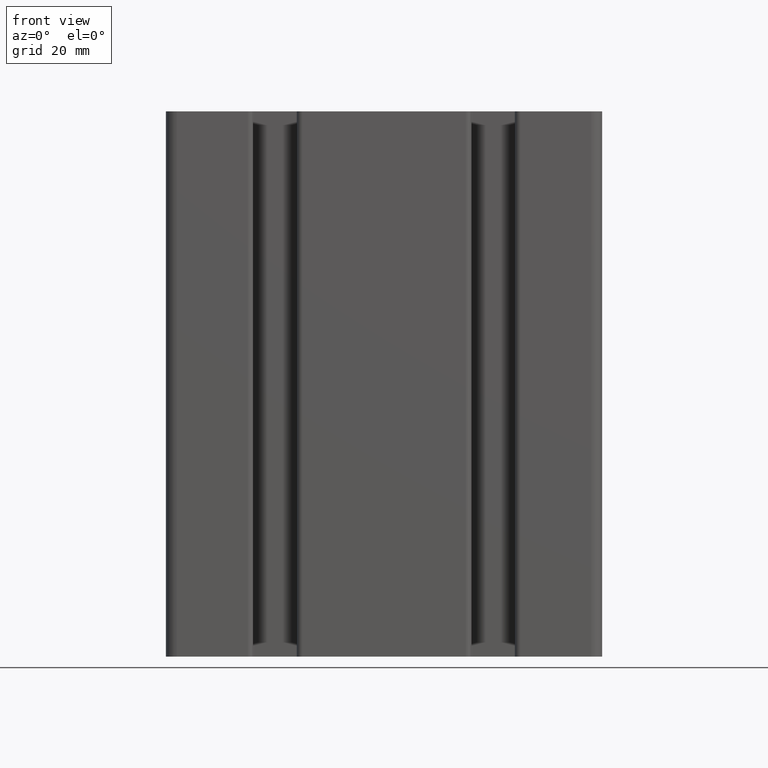
[diagram: clean part render]
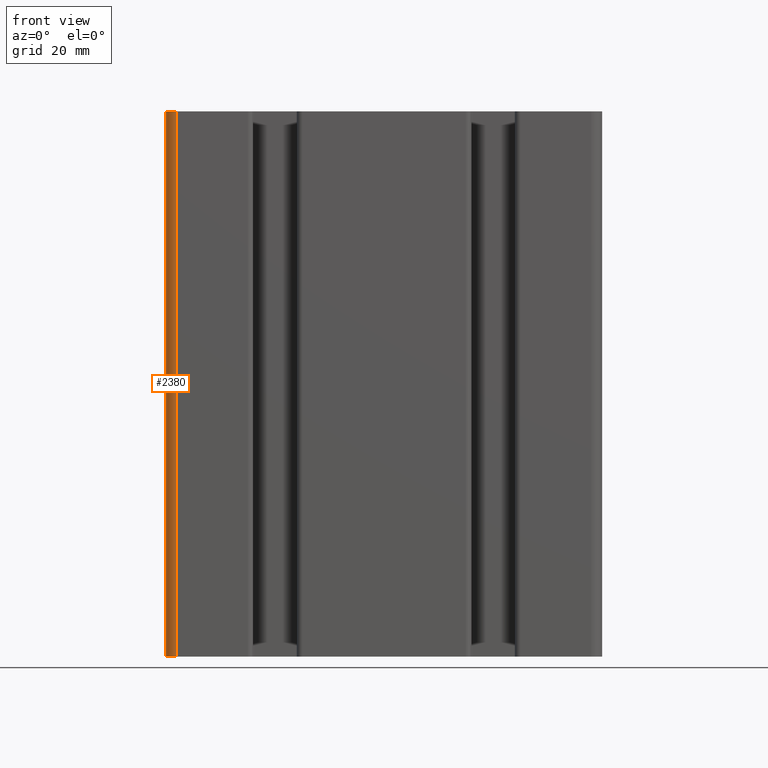
[diagram: same view with one face highlighted and labeled with its STEP entity id]
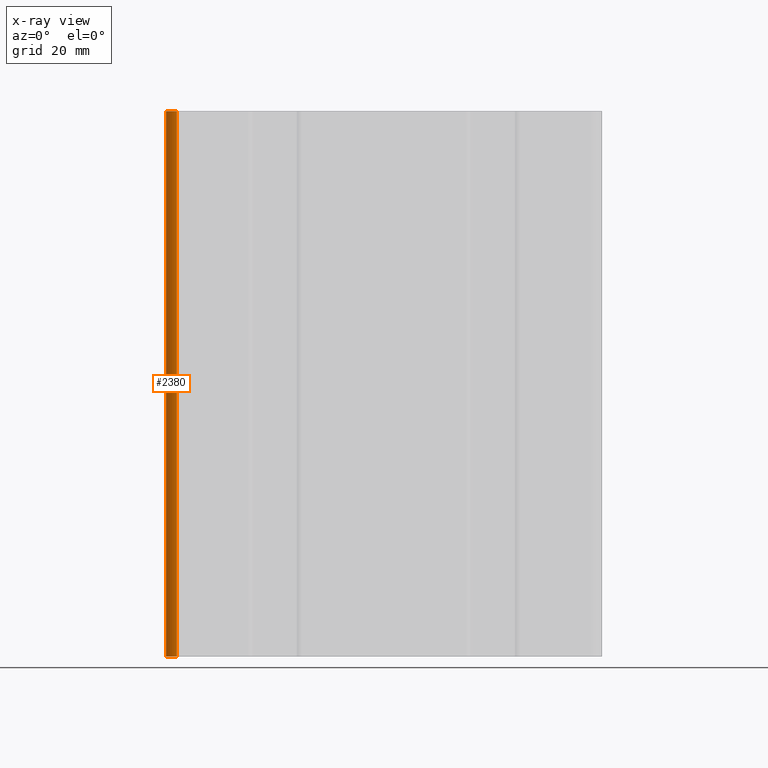
[diagram: x-ray of the same camera — body ghosted, the highlighted face saturated]
A machine part, front view. The second image highlights one B-rep face of the part: STEP entity #2380.
The next image is the same camera in x-ray: the body ghosted, the highlighted face saturated — about 0% of this face is hidden behind the body in this view.
In plain terms, the highlighted cylindrical surface (edge-blend (fillet) strip) has radius 2 mm, axis along (0, 0, 1).
Its self-contained STEP definition (entity closure, byte-faithful):
#223=LINE('',#3994,#455);
#234=LINE('',#4015,#466);
#455=VECTOR('',#3275,100.);
#466=VECTOR('',#3294,100.);
#660=FACE_OUTER_BOUND('',#785,.T.);
#785=EDGE_LOOP('',(#2065,#2066,#2067,#2068));
#909=CIRCLE('',#2616,2.00000000000001);
#911=CIRCLE('',#2619,2.00000000000001);
#1137=VERTEX_POINT('',#3991);
#1138=VERTEX_POINT('',#3993);
#1143=VERTEX_POINT('',#4012);
#1144=VERTEX_POINT('',#4014);
#1471=EDGE_CURVE('',#1137,#1138,#223,.T.);
#1482=EDGE_CURVE('',#1144,#1143,#234,.T.);
#1493=EDGE_CURVE('',#1143,#1138,#909,.T.);
#1496=EDGE_CURVE('',#1144,#1137,#911,.T.);
#2065=ORIENTED_EDGE('',*,*,#1493,.T.);
#2066=ORIENTED_EDGE('',*,*,#1471,.F.);
#2067=ORIENTED_EDGE('',*,*,#1496,.F.);
#2068=ORIENTED_EDGE('',*,*,#1482,.T.);
#2263=CYLINDRICAL_SURFACE('',#2618,2.00000000000001);
#2380=ADVANCED_FACE('',(#660),#2263,.T.);
#2616=AXIS2_PLACEMENT_3D('',#4033,#3313,#3314);
#2618=AXIS2_PLACEMENT_3D('',#4037,#3318,#3319);
#2619=AXIS2_PLACEMENT_3D('',#4038,#3320,#3321);
#3275=DIRECTION('',(0.,0.,1.));
#3294=DIRECTION('',(0.,0.,1.));
#3313=DIRECTION('center_axis',(0.,0.,-1.));
#3314=DIRECTION('ref_axis',(-1.,0.,0.));
#3318=DIRECTION('center_axis',(0.,0.,1.));
#3319=DIRECTION('ref_axis',(-1.,0.,0.));
#3320=DIRECTION('center_axis',(0.,0.,-1.));
#3321=DIRECTION('ref_axis',(-1.,0.,0.));
#3991=CARTESIAN_POINT('',(-40.,-18.,0.));
#3993=CARTESIAN_POINT('',(-40.,-18.,100.));
#3994=CARTESIAN_POINT('',(-40.,-18.,0.));
#4012=CARTESIAN_POINT('',(-38.,-20.,100.));
#4014=CARTESIAN_POINT('',(-38.,-20.,0.));
#4015=CARTESIAN_POINT('',(-38.,-20.,0.));
#4033=CARTESIAN_POINT('Origin',(-38.,-18.,100.));
#4037=CARTESIAN_POINT('Origin',(-38.,-18.,0.));
#4038=CARTESIAN_POINT('Origin',(-38.,-18.,0.));